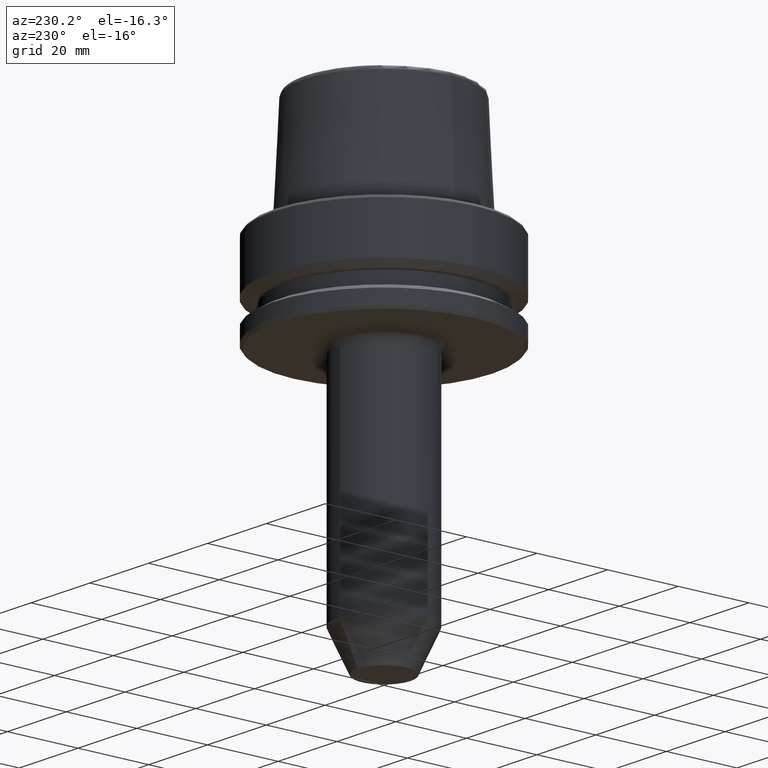
[diagram: clean part render]
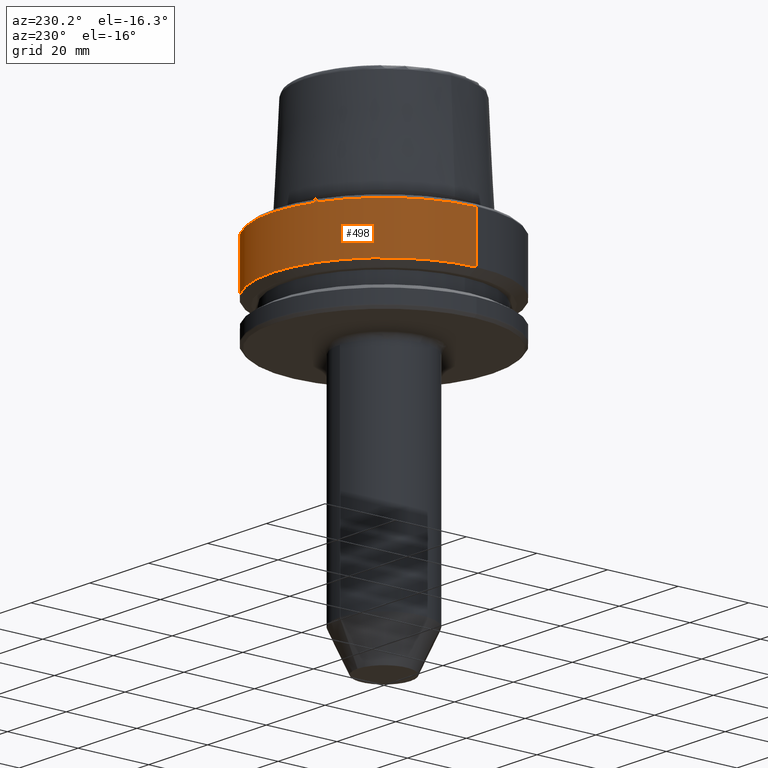
[diagram: same view with one face highlighted and labeled with its STEP entity id]
A machine part, auxiliary view. The second image highlights one B-rep face of the part: STEP entity #498.
In plain terms, the highlighted cylindrical surface (partial cylindrical patch) has radius 31.5 mm, axis along (-0, -0, 1).
Its self-contained STEP definition (entity closure, byte-faithful):
#7 = CYLINDRICAL_SURFACE ( 'NONE', #1025, 31.50000000000000000 ) ;
#31 = CARTESIAN_POINT ( 'NONE',  ( 0.0000000000000000000, 0.0000000000000000000, -0.9656854249492363700 ) ) ;
#120 = VECTOR ( 'NONE', #1056, 1000.000000000000000 ) ;
#228 = DIRECTION ( 'NONE',  ( -0.0000000000000000000, -0.0000000000000000000, 1.000000000000000000 ) ) ;
#244 = EDGE_CURVE ( 'NONE', #1129, #649, #826, .T. ) ;
#262 = LINE ( 'NONE', #1003, #1226 ) ;
#270 = DIRECTION ( 'NONE',  ( -0.0000000000000000000, -0.0000000000000000000, 1.000000000000000000 ) ) ;
#276 = ORIENTED_EDGE ( 'NONE', *, *, #545, .F. ) ;
#288 = CARTESIAN_POINT ( 'NONE',  ( -31.50000000000000000, 3.857637417314162700E-015, -14.62250092524070100 ) ) ;
#332 = ORIENTED_EDGE ( 'NONE', *, *, #244, .T. ) ;
#372 = CARTESIAN_POINT ( 'NONE',  ( 0.0000000000000000000, 0.0000000000000000000, -14.62250092524070100 ) ) ;
#374 = DIRECTION ( 'NONE',  ( -0.0000000000000000000, -0.0000000000000000000, 1.000000000000000000 ) ) ;
#382 = ORIENTED_EDGE ( 'NONE', *, *, #1172, .T. ) ;
#392 = DIRECTION ( 'NONE',  ( 1.000000000000000000, 0.0000000000000000000, 0.0000000000000000000 ) ) ;
#396 = ORIENTED_EDGE ( 'NONE', *, *, #521, .F. ) ;
#471 = AXIS2_PLACEMENT_3D ( 'NONE', #372, #374, #392 ) ;
#498 = ADVANCED_FACE ( 'NONE', ( #529 ), #7, .T. ) ;
#521 = EDGE_CURVE ( 'NONE', #1129, #886, #989, .T. ) ;
#529 = FACE_OUTER_BOUND ( 'NONE', #1177, .T. ) ;
#545 = EDGE_CURVE ( 'NONE', #886, #699, #1237, .T. ) ;
#649 = VERTEX_POINT ( 'NONE', #288 ) ;
#699 = VERTEX_POINT ( 'NONE', #1030 ) ;
#798 = CARTESIAN_POINT ( 'NONE',  ( 31.50000000000000000, 0.0000000000000000000, -14.62250092524070100 ) ) ;
#826 = CIRCLE ( 'NONE', #471, 31.50000000000000000 ) ;
#886 = VERTEX_POINT ( 'NONE', #1064 ) ;
#892 = CARTESIAN_POINT ( 'NONE',  ( 0.0000000000000000000, 0.0000000000000000000, 78.96908074195309300 ) ) ;
#951 = CARTESIAN_POINT ( 'NONE',  ( 31.50000000000000000, 0.0000000000000000000, 78.96908074195309300 ) ) ;
#968 = DIRECTION ( 'NONE',  ( 1.000000000000000000, 0.0000000000000000000, 0.0000000000000000000 ) ) ;
#989 = LINE ( 'NONE', #951, #120 ) ;
#1003 = CARTESIAN_POINT ( 'NONE',  ( -31.50000000000000000, 3.857637417314162700E-015, 78.96908074195309300 ) ) ;
#1025 = AXIS2_PLACEMENT_3D ( 'NONE', #892, #270, #968 ) ;
#1026 = DIRECTION ( 'NONE',  ( 1.000000000000000000, 0.0000000000000000000, 0.0000000000000000000 ) ) ;
#1030 = CARTESIAN_POINT ( 'NONE',  ( -31.50000000000000700, 3.857637417314163500E-015, -0.9656854249492363700 ) ) ;
#1056 = DIRECTION ( 'NONE',  ( -0.0000000000000000000, -0.0000000000000000000, 1.000000000000000000 ) ) ;
#1064 = CARTESIAN_POINT ( 'NONE',  ( 31.50000000000000700, 0.0000000000000000000, -0.9656854249492363700 ) ) ;
#1129 = VERTEX_POINT ( 'NONE', #798 ) ;
#1157 = AXIS2_PLACEMENT_3D ( 'NONE', #31, #228, #1026 ) ;
#1172 = EDGE_CURVE ( 'NONE', #649, #699, #262, .T. ) ;
#1177 = EDGE_LOOP ( 'NONE', ( #332, #382, #276, #396 ) ) ;
#1199 = DIRECTION ( 'NONE',  ( -0.0000000000000000000, -0.0000000000000000000, 1.000000000000000000 ) ) ;
#1226 = VECTOR ( 'NONE', #1199, 1000.000000000000000 ) ;
#1237 = CIRCLE ( 'NONE', #1157, 31.50000000000000700 ) ;